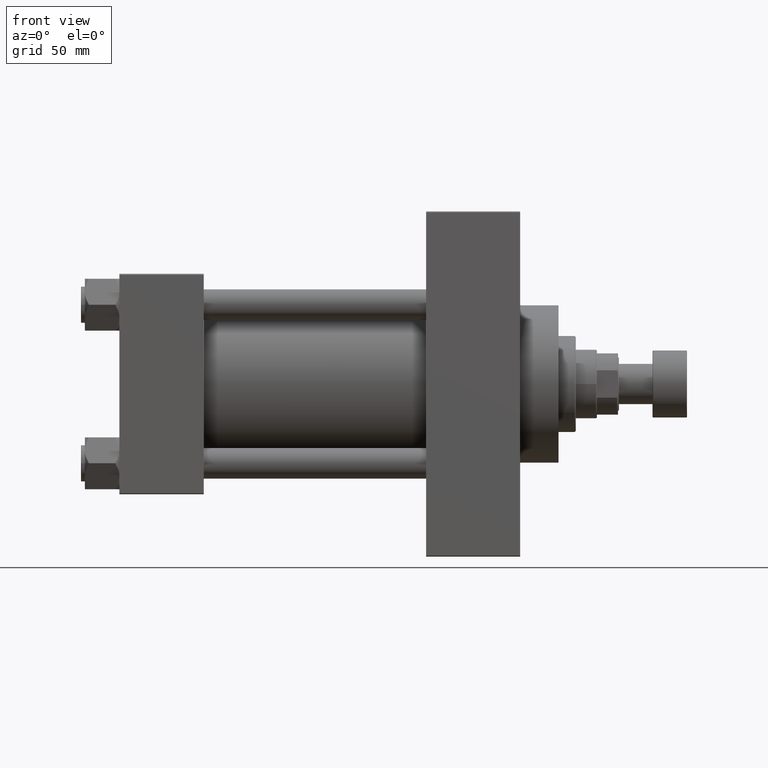
[diagram: clean part render]
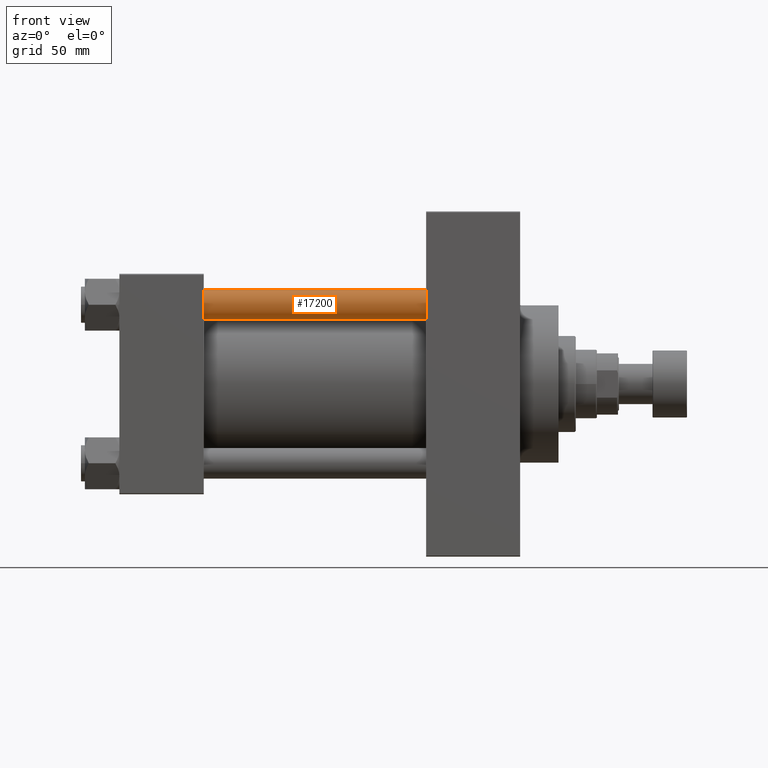
[diagram: same view with one face highlighted and labeled with its STEP entity id]
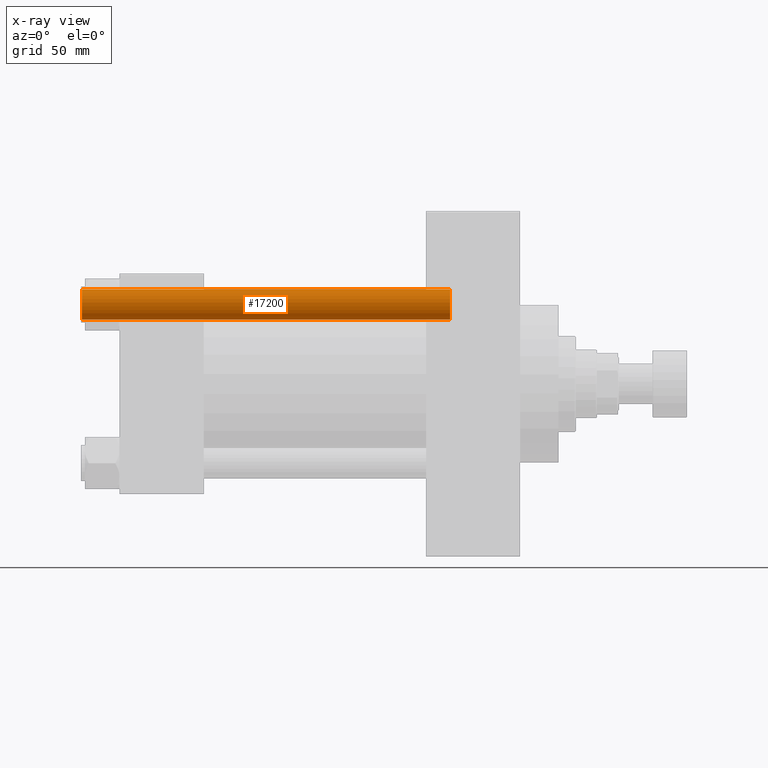
[diagram: x-ray of the same camera — body ghosted, the highlighted face saturated]
A machine part, front view. The second image highlights one B-rep face of the part: STEP entity #17200.
The next image is the same camera in x-ray: the body ghosted, the highlighted face saturated — about 0% of this face is hidden behind the body in this view.
In plain terms, the highlighted cylindrical surface (edge-blend (fillet) strip) has radius 8 mm, axis along (1, 0, 0).
Its self-contained STEP definition (entity closure, byte-faithful):
#291 = VECTOR ( 'NONE', #33775, 1000.000000000000000 ) ;
#482 = CYLINDRICAL_SURFACE ( 'NONE', #48120, 8.000000000000000000 ) ;
#1542 = VERTEX_POINT ( 'NONE', #43551 ) ;
#1928 = CARTESIAN_POINT ( 'NONE',  ( 8.000000000000000000, 9.797174393178825657E-16, 192.4999999999999716 ) ) ;
#4081 = LINE ( 'NONE', #23046, #291 ) ;
#8041 = CARTESIAN_POINT ( 'NONE',  ( 0.000000000000000000, 0.000000000000000000, 193.0000000000000000 ) ) ;
#8276 = FACE_OUTER_BOUND ( 'NONE', #18537, .T. ) ;
#9064 = CIRCLE ( 'NONE', #12205, 8.000000000000000000 ) ;
#11379 = DIRECTION ( 'NONE',  ( -0.000000000000000000, -0.000000000000000000, -1.000000000000000000 ) ) ;
#11991 = VERTEX_POINT ( 'NONE', #28298 ) ;
#12205 = AXIS2_PLACEMENT_3D ( 'NONE', #24014, #12840, #27659 ) ;
#12840 = DIRECTION ( 'NONE',  ( 0.000000000000000000, 0.000000000000000000, -1.000000000000000000 ) ) ;
#12929 = DIRECTION ( 'NONE',  ( -0.000000000000000000, -0.000000000000000000, 1.000000000000000000 ) ) ;
#13160 = CARTESIAN_POINT ( 'NONE',  ( 0.000000000000000000, 0.000000000000000000, 0.5000000000000559552 ) ) ;
#13792 = EDGE_CURVE ( 'NONE', #21704, #1542, #4081, .T. ) ;
#17048 = DIRECTION ( 'NONE',  ( 1.000000000000000000, 0.000000000000000000, 0.000000000000000000 ) ) ;
#17200 = ADVANCED_FACE ( 'NONE', ( #8276 ), #482, .T. ) ;
#17228 = ORIENTED_EDGE ( 'NONE', *, *, #31314, .T. ) ;
#17677 = AXIS2_PLACEMENT_3D ( 'NONE', #13160, #12929, #17048 ) ;
#18537 = EDGE_LOOP ( 'NONE', ( #17228, #21096, #20101, #38857 ) ) ;
#20101 = ORIENTED_EDGE ( 'NONE', *, *, #36361, .T. ) ;
#20808 = EDGE_CURVE ( 'NONE', #11991, #23918, #44232, .T. ) ;
#21096 = ORIENTED_EDGE ( 'NONE', *, *, #13792, .T. ) ;
#21704 = VERTEX_POINT ( 'NONE', #1928 ) ;
#23046 = CARTESIAN_POINT ( 'NONE',  ( 8.000000000000000000, 9.797174393178825657E-16, 193.0000000000000000 ) ) ;
#23918 = VERTEX_POINT ( 'NONE', #41532 ) ;
#24014 = CARTESIAN_POINT ( 'NONE',  ( 0.000000000000000000, 0.000000000000000000, 192.4999999999999716 ) ) ;
#27659 = DIRECTION ( 'NONE',  ( 1.000000000000000000, 0.000000000000000000, 0.000000000000000000 ) ) ;
#28298 = CARTESIAN_POINT ( 'NONE',  ( -8.000000000000000000, 0.000000000000000000, 192.4999999999999716 ) ) ;
#29866 = CARTESIAN_POINT ( 'NONE',  ( -8.000000000000000000, 0.000000000000000000, 193.0000000000000000 ) ) ;
#30170 = DIRECTION ( 'NONE',  ( -1.000000000000000000, 0.000000000000000000, 0.000000000000000000 ) ) ;
#31314 = EDGE_CURVE ( 'NONE', #11991, #21704, #9064, .T. ) ;
#33775 = DIRECTION ( 'NONE',  ( -0.000000000000000000, -0.000000000000000000, -1.000000000000000000 ) ) ;
#34544 = DIRECTION ( 'NONE',  ( -0.000000000000000000, -0.000000000000000000, -1.000000000000000000 ) ) ;
#35266 = VECTOR ( 'NONE', #11379, 1000.000000000000000 ) ;
#36361 = EDGE_CURVE ( 'NONE', #1542, #23918, #48005, .T. ) ;
#38857 = ORIENTED_EDGE ( 'NONE', *, *, #20808, .F. ) ;
#41532 = CARTESIAN_POINT ( 'NONE',  ( -8.000000000000000000, 0.000000000000000000, 0.5000000000000559552 ) ) ;
#43551 = CARTESIAN_POINT ( 'NONE',  ( 8.000000000000000000, 9.797174393178825657E-16, 0.5000000000000559552 ) ) ;
#44232 = LINE ( 'NONE', #29866, #35266 ) ;
#48005 = CIRCLE ( 'NONE', #17677, 8.000000000000000000 ) ;
#48120 = AXIS2_PLACEMENT_3D ( 'NONE', #8041, #34544, #30170 ) ;